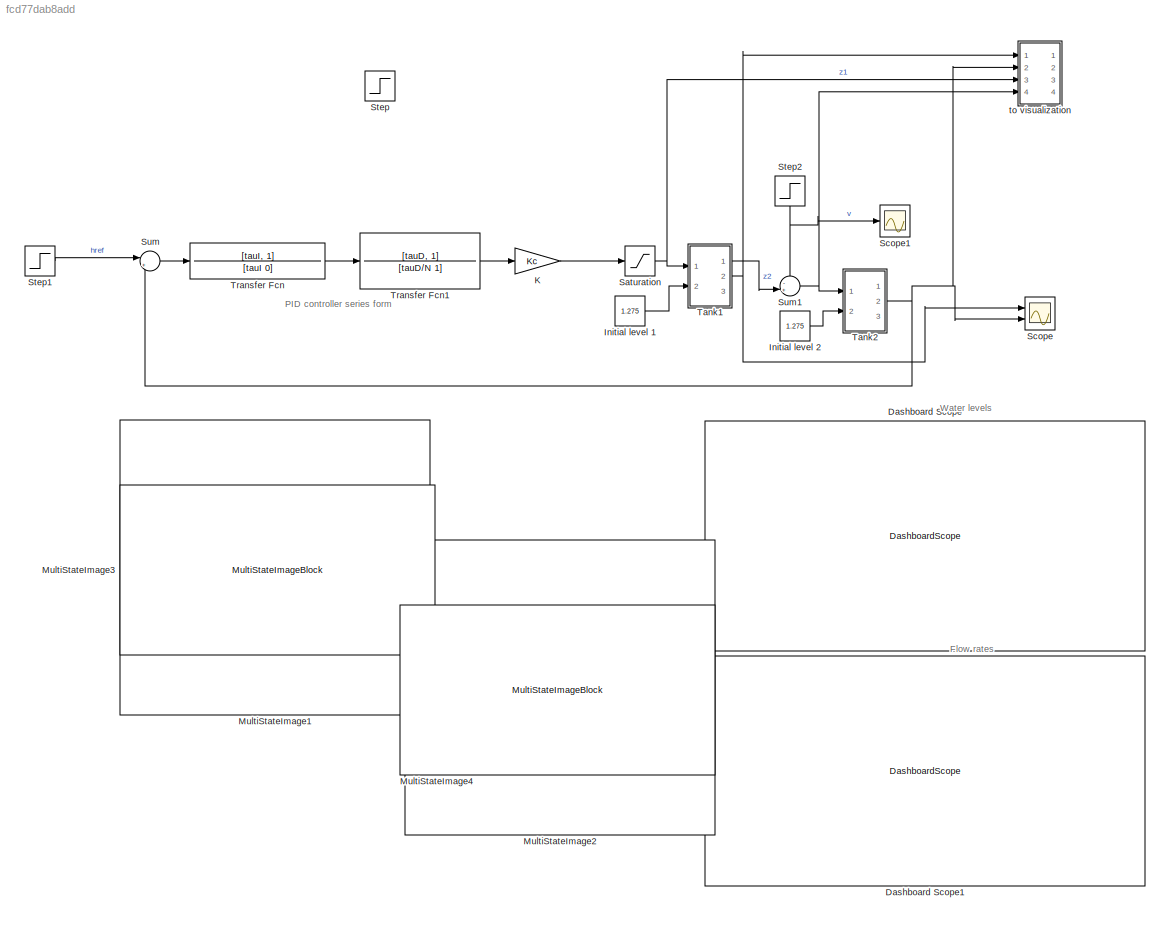
MODEL slx_fcd77dab8add
KIND model
CONFIG AbsTol = auto
CONFIG EnableMultiTasking = off
CONFIG FixedStep = 0.1
CONFIG MaxStep = auto
CONFIG MinStep = auto
CONFIG RelTol = 1e-3
CONFIG SampleTimeConstraint = Unconstrained
CONFIG SolverName = VariableStepAuto
CONFIG StartTime = 0.0
CONFIG StopTime = 2400
WORKSPACE source: MATLAB code (in-file)
WORKSPACE A1 = 1
WORKSPACE a1 = 0.1*0.1  (= 0.01)
WORKSPACE A2 = A1  (= 1)
WORKSPACE a2 = a1  (= 0.01)
WORKSPACE h10 = 1
WORKSPACE h20 = 1
BLOCK [DashboardScope] Dashboard Scope
  Ymax = 2.6000000000000001
  Ymin = 0
BLOCK [DashboardScope] Dashboard Scope1
  Ymax = 0.29999999999999999
  Ymin = 0
BLOCK [Constant] Initial level 1
  Value = 1.275
BLOCK [Constant] Initial level 2
  Value = 1.275
BLOCK [Gain] K
  Gain = Kc
BLOCK [MultiStateImageBlock] MultiStateImage1
BLOCK [MultiStateImageBlock] MultiStateImage2
BLOCK [MultiStateImageBlock] MultiStateImage3
  ScaleMode = Fill
BLOCK [MultiStateImageBlock] MultiStateImage4
  ScaleMode = Fill
BLOCK [Saturate] Saturation
  LowerLimit = 0
BLOCK [Scope] Scope
  Floating = off
  NumInputPorts = 2
  Ports = [2]
  ScopeSpecificationString = Simulink.scopes.TimeScopeBlockCfg('CurrentConfiguration', extmgr.ConfigurationSet(extmgr.Configuration('Core','General UI',true),extmgr.Configuration('Core','Source UI',true),extmgr.Configuration('Sources','WiredSimulink',true),extmgr.Configuration('Visuals','Time Domain',true,'SerializedDisplays',{struct('MinYLimReal','0.18719','MaxYLimReal','3.77161','YLabelReal','','MinYLimMag','0.18719','MaxYL...<+1751ch>
BLOCK [Scope] Scope1
  Floating = off
  NumInputPorts = 1
  Ports = [1]
  ScopeSpecificationString = Simulink.scopes.TimeScopeBlockCfg('CurrentConfiguration', extmgr.ConfigurationSet(extmgr.Configuration('Core','General UI',true),extmgr.Configuration('Core','Source UI',true),extmgr.Configuration('Sources','WiredSimulink',true,'DataLoggingVariableName','ScopeData1'),extmgr.Configuration('Visuals','Time Domain',true,'SerializedDisplays',{struct('MinYLimReal','-0.00187','MaxYLimReal','0.01688','YLab...<+1428ch>
BLOCK [Step] Step
  After = 0.065
  Before = 0.05
  SampleTime = 0
  Time = 100
BLOCK [Step] Step1
  After = 2
  Before = 1.275
  SampleTime = 0
  Time = 800
BLOCK [Step] Step2
  After = 0.015
  NameLocation = left
  SampleTime = 0
  Time = 1600
BLOCK [Sum] Sum
  Inputs = |+-
  Ports = [2, 1]
BLOCK [Sum] Sum1
  Inputs = -+|
  Ports = [2, 1]
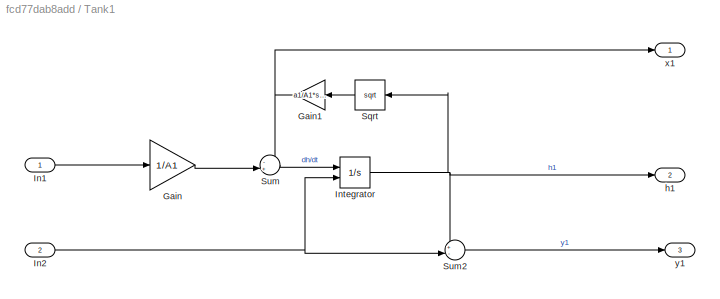
BLOCK [SubSystem] Tank1
  Ports = [2, 3]
  RequestExecContextInheritance = off
BLOCK [Gain] Tank1/Gain
  Gain = 1/A1
BLOCK [Gain] Tank1/Gain1
  Gain = a1/A1*sqrt(2*9.8)
  NameLocation = top
BLOCK [Inport] Tank1/In1
BLOCK [Inport] Tank1/In2
  Port = 2
BLOCK [Integrator] Tank1/Integrator
  InitialCondition = h10
  InitialConditionSource = external
  LimitOutput = on
  LowerSaturationLimit = 0
  Ports = [2, 1]
BLOCK [Sqrt] Tank1/Sqrt
  NameLocation = top
BLOCK [Sum] Tank1/Sum
  Inputs = -+|
  Ports = [2, 1]
BLOCK [Sum] Tank1/Sum2
  Inputs = +-|
  Ports = [2, 1]
BLOCK [Outport] Tank1/h1
  Port = 2
  VectorParamsAs1DForOutWhenUnconnected = off
BLOCK [Outport] Tank1/x1
  VectorParamsAs1DForOutWhenUnconnected = off
BLOCK [Outport] Tank1/y1
  Port = 3
  VectorParamsAs1DForOutWhenUnconnected = off
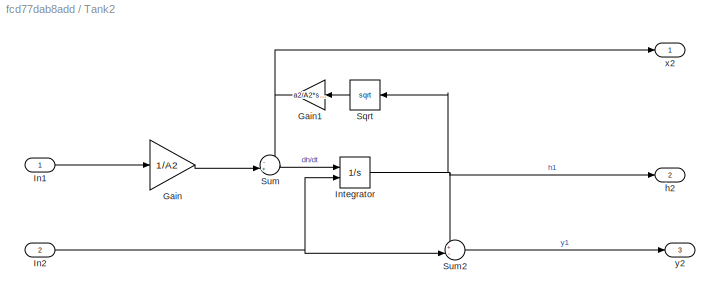
BLOCK [SubSystem] Tank2
  Ports = [2, 3]
  RequestExecContextInheritance = off
BLOCK [Gain] Tank2/Gain
  Gain = 1/A2
BLOCK [Gain] Tank2/Gain1
  Gain = a2/A2*sqrt(2*9.8)
  NameLocation = top
BLOCK [Inport] Tank2/In1
BLOCK [Inport] Tank2/In2
  Port = 2
BLOCK [Integrator] Tank2/Integrator
  InitialCondition = h10
  InitialConditionSource = external
  LimitOutput = on
  LowerSaturationLimit = 0
  Ports = [2, 1]
BLOCK [Sqrt] Tank2/Sqrt
  NameLocation = top
BLOCK [Sum] Tank2/Sum
  Inputs = -+|
  Ports = [2, 1]
BLOCK [Sum] Tank2/Sum2
  Inputs = +-|
  Ports = [2, 1]
BLOCK [Outport] Tank2/h2
  Port = 2
  VectorParamsAs1DForOutWhenUnconnected = off
BLOCK [Outport] Tank2/x2
  VectorParamsAs1DForOutWhenUnconnected = off
BLOCK [Outport] Tank2/y2
  Port = 3
  VectorParamsAs1DForOutWhenUnconnected = off
BLOCK [TransferFcn] Transfer Fcn
  Denominator = [tauI 0]
  Numerator = [tauI, 1]
BLOCK [TransferFcn] Transfer Fcn1
  Denominator = [tauD/N 1]
  Numerator = [tauD, 1]
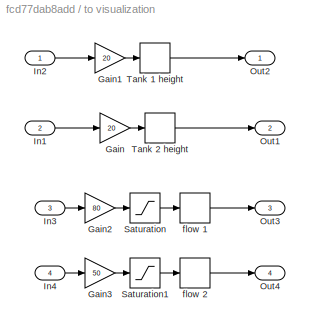
BLOCK [SubSystem] to visualization
  Ports = [4, 4]
  RequestExecContextInheritance = off
BLOCK [Gain] to visualization/Gain
  Gain = 20
BLOCK [Gain] to visualization/Gain1
  Gain = 20
BLOCK [Gain] to visualization/Gain2
  Gain = 80
BLOCK [Gain] to visualization/Gain3
  Gain = 50
BLOCK [Inport] to visualization/In1
  Port = 2
BLOCK [Inport] to visualization/In2
BLOCK [Inport] to visualization/In3
  Port = 3
BLOCK [Inport] to visualization/In4
  Port = 4
BLOCK [Outport] to visualization/Out1
  Port = 2
  VectorParamsAs1DForOutWhenUnconnected = off
BLOCK [Outport] to visualization/Out2
  VectorParamsAs1DForOutWhenUnconnected = off
BLOCK [Outport] to visualization/Out3
  Port = 3
  VectorParamsAs1DForOutWhenUnconnected = off
BLOCK [Outport] to visualization/Out4
  Port = 4
  VectorParamsAs1DForOutWhenUnconnected = off
BLOCK [Saturate] to visualization/Saturation
  LowerLimit = 0
  UpperLimit = 10
BLOCK [Saturate] to visualization/Saturation1
  LowerLimit = 0
  UpperLimit = 5
BLOCK [Rounding] to visualization/Tank 1 height
BLOCK [Rounding] to visualization/Tank 2 height
BLOCK [Rounding] to visualization/flow 1
BLOCK [Rounding] to visualization/flow 2
ANNOTATION (root): Flow rates
ANNOTATION (root): Water levels
ANNOTATION (root): PID controller series form
LINE Initial level 1:1 -> Tank1:2
LINE Initial level 2:1 -> Tank2:2
LINE K:1 -> Saturation:1
NET Saturation:1 -> Tank1:1, to visualization:3
LINE Step1:1 -> Sum:1
NET Step2:1 -> Scope1:1, Sum1:1
NET Sum1:1 -> Tank2:1, to visualization:4
LINE Sum:1 -> Transfer Fcn:1
NET Tank1/Gain1:1 -> Tank1/Sum:1, Tank1/x1:1
LINE Tank1/Gain:1 -> Tank1/Sum:2
LINE Tank1/In1:1 -> Tank1/Gain:1
NET Tank1/In2:1 -> Tank1/Integrator:2, Tank1/Sum2:2
NET Tank1/Integrator:1 -> Tank1/Sqrt:1, Tank1/Sum2:1, Tank1/h1:1
LINE Tank1/Sqrt:1 -> Tank1/Gain1:1
LINE Tank1/Sum2:1 -> Tank1/y1:1
LINE Tank1/Sum:1 -> Tank1/Integrator:1
LINE Tank1:1 -> Sum1:2
NET Tank1:2 -> Scope:1, to visualization:1
NET Tank2/Gain1:1 -> Tank2/Sum:1, Tank2/x2:1
LINE Tank2/Gain:1 -> Tank2/Sum:2
LINE Tank2/In1:1 -> Tank2/Gain:1
NET Tank2/In2:1 -> Tank2/Integrator:2, Tank2/Sum2:2
NET Tank2/Integrator:1 -> Tank2/Sqrt:1, Tank2/Sum2:1, Tank2/h2:1
LINE Tank2/Sqrt:1 -> Tank2/Gain1:1
LINE Tank2/Sum2:1 -> Tank2/y2:1
LINE Tank2/Sum:1 -> Tank2/Integrator:1
NET Tank2:2 -> Scope:2, Sum:2, to visualization:2
LINE Transfer Fcn1:1 -> K:1
LINE Transfer Fcn:1 -> Transfer Fcn1:1
LINE to visualization/Gain1:1 -> to visualization/Tank 1 height:1
LINE to visualization/Gain2:1 -> to visualization/Saturation:1
LINE to visualization/Gain3:1 -> to visualization/Saturation1:1
LINE to visualization/Gain:1 -> to visualization/Tank 2 height:1
LINE to visualization/In1:1 -> to visualization/Gain:1
LINE to visualization/In2:1 -> to visualization/Gain1:1
LINE to visualization/In3:1 -> to visualization/Gain2:1
LINE to visualization/In4:1 -> to visualization/Gain3:1
LINE to visualization/Saturation1:1 -> to visualization/flow 2:1
LINE to visualization/Saturation:1 -> to visualization/flow 1:1
LINE to visualization/Tank 1 height:1 -> to visualization/Out2:1
LINE to visualization/Tank 2 height:1 -> to visualization/Out1:1
LINE to visualization/flow 1:1 -> to visualization/Out3:1
LINE to visualization/flow 2:1 -> to visualization/Out4:1
note: NET lines group one-source signal fan-out (src -> all destinations, sorted); 1:1 wires keep LINE
